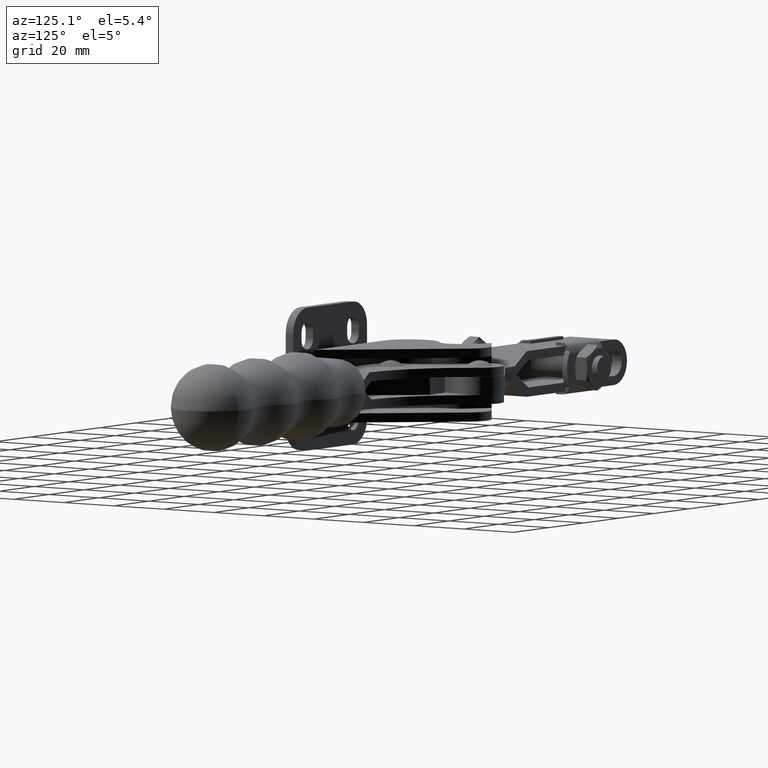
[diagram: clean part render]
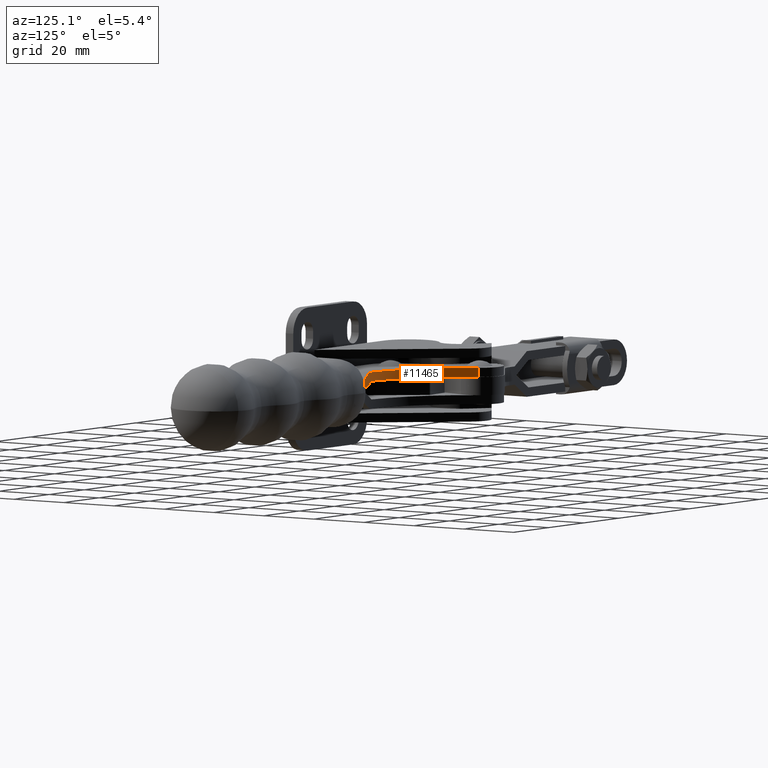
[diagram: same view with one face highlighted and labeled with its STEP entity id]
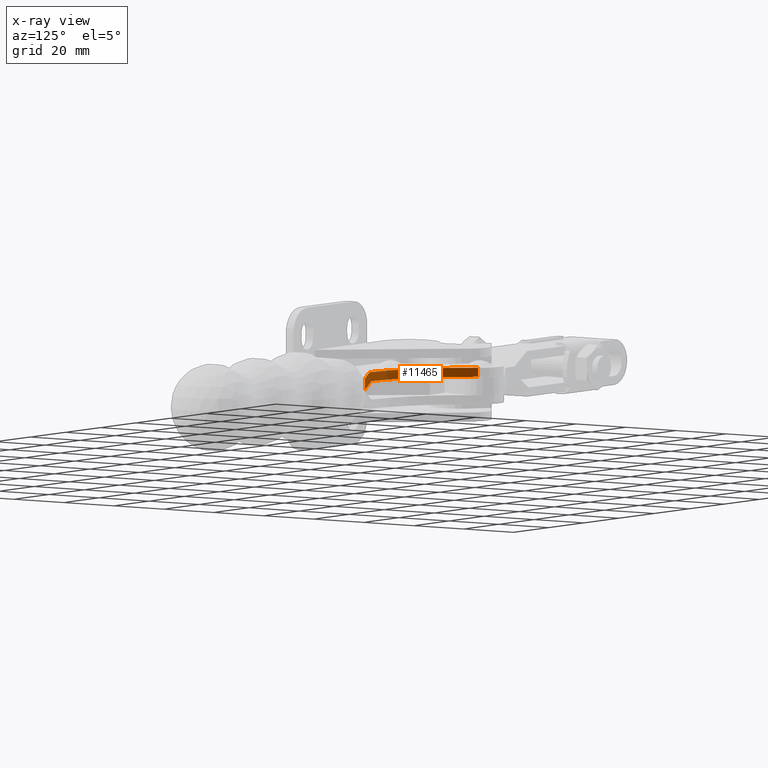
[diagram: x-ray of the same camera — body ghosted, the highlighted face saturated]
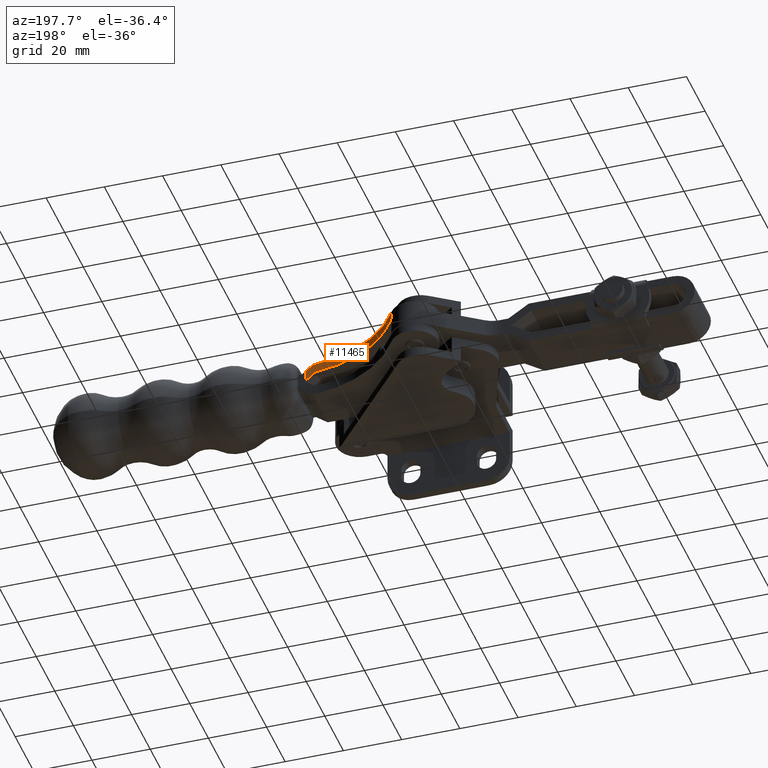
[diagram: same view with one face highlighted and labeled with its STEP entity id]
A machine part, auxiliary view. The second image highlights one B-rep face of the part: STEP entity #11465.
The next image is the same camera in x-ray: the body ghosted, the highlighted face saturated — about 0% of this face is hidden behind the body in this view.
A second angle (auxiliary view) of the same face is appended — the face is thin or edge-on in the first view.
In plain terms, the highlighted cylindrical surface (partial cylindrical patch) has radius 42 mm, axis along (-0, 0, 1).
Its self-contained STEP definition (entity closure, byte-faithful):
#87 = ORIENTED_EDGE ( 'NONE', *, *, #8102, .T. ) ;
#380 = CARTESIAN_POINT ( 'NONE',  ( 0.9703465250545939600, 84.82523727887910100, -1.561251128379126400E-014 ) ) ;
#640 = CARTESIAN_POINT ( 'NONE',  ( 1.087258008109923200, 42.82539999699034900, -2.706234756093502300 ) ) ;
#735 = CIRCLE ( 'NONE', #8889, 41.99999999999996400 ) ;
#871 = VERTEX_POINT ( 'NONE', #10898 ) ;
#1359 = DIRECTION ( 'NONE',  ( 0.9999961257592553400, 0.002783606739413593000, -4.900564053285028200E-017 ) ) ;
#1413 = CARTESIAN_POINT ( 'NONE',  ( -0.1173642718958565500, 42.82204678930220600, -1.802764545828276400 ) ) ;
#1460 = AXIS2_PLACEMENT_3D ( 'NONE', #3442, #10125, #4414 ) ;
#1632 = EDGE_CURVE ( 'NONE', #2728, #871, #6992, .T. ) ;
#1875 = EDGE_CURVE ( 'NONE', #2728, #5608, #10280, .T. ) ;
#2625 = VERTEX_POINT ( 'NONE', #640 ) ;
#2728 = VERTEX_POINT ( 'NONE', #11457 ) ;
#3325 = CARTESIAN_POINT ( 'NONE',  ( -1.321016751643564500, 42.87049046262857400, -0.9001298195489755300 ) ) ;
#3442 = CARTESIAN_POINT ( 'NONE',  ( 0.9703465250545939600, 84.82523727887910100, 2.999999999999988500 ) ) ;
#3607 = VECTOR ( 'NONE', #6369, 1000.000000000000000 ) ;
#3650 = ORIENTED_EDGE ( 'NONE', *, *, #10240, .F. ) ;
#3658 = ORIENTED_EDGE ( 'NONE', *, *, #6288, .T. ) ;
#3744 = CARTESIAN_POINT ( 'NONE',  ( -0.6526655517703916500, 42.84758880842436900, 2.348656534460550600 ) ) ;
#3787 = CARTESIAN_POINT ( 'NONE',  ( 1.087258008109909200, 42.82539999699034900, 1.043765243906067200 ) ) ;
#4414 = DIRECTION ( 'NONE',  ( 0.9999961257592553400, 0.002783606739412601600, 0.0000000000000000000 ) ) ;
#4499 = DIRECTION ( 'NONE',  ( -1.331013135398842300E-023, 9.481762602820905900E-024, 1.000000000000000000 ) ) ;
#4934 = EDGE_LOOP ( 'NONE', ( #87, #11246, #3658, #7043, #5493, #3650 ) ) ;
#5493 = ORIENTED_EDGE ( 'NONE', *, *, #1875, .T. ) ;
#5608 = VERTEX_POINT ( 'NONE', #7861 ) ;
#5677 = CARTESIAN_POINT ( 'NONE',  ( 0.2171238552780538300, 42.82297787631451100, 1.696368386871704300 ) ) ;
#6181 = LINE ( 'NONE', #8219, #3607 ) ;
#6199 = CARTESIAN_POINT ( 'NONE',  ( 1.087258008109923200, 42.82539999699034900, -37.00000000000001400 ) ) ;
#6288 = EDGE_CURVE ( 'NONE', #11617, #871, #6181, .T. ) ;
#6369 = DIRECTION ( 'NONE',  ( -1.331013135398842300E-023, 9.481762602820905900E-024, 1.000000000000000000 ) ) ;
#6499 = DIRECTION ( 'NONE',  ( 0.9999961257592553400, 0.002783606739412601600, 0.0000000000000000000 ) ) ;
#6617 = EDGE_CURVE ( 'NONE', #7572, #11617, #735, .T. ) ;
#6907 = FACE_OUTER_BOUND ( 'NONE', #4934, .T. ) ;
#6992 = CIRCLE ( 'NONE', #1460, 41.99999999999996400 ) ;
#7043 = ORIENTED_EDGE ( 'NONE', *, *, #1632, .F. ) ;
#7102 = DIRECTION ( 'NONE',  ( -4.900523157311254800E-017, -1.364213401785522700E-019, -1.000000000000000000 ) ) ;
#7561 = CARTESIAN_POINT ( 'NONE',  ( -34.84370344226167800, 62.88546004804626200, -1.951563910473908000E-013 ) ) ;
#7572 = VERTEX_POINT ( 'NONE', #7723 ) ;
#7723 = CARTESIAN_POINT ( 'NONE',  ( -2.521473276114391600, 42.97064142040542100, -1.517883041479706200E-014 ) ) ;
#7861 = CARTESIAN_POINT ( 'NONE',  ( 1.087258008109909200, 42.82539999699034900, 1.043765243906067200 ) ) ;
#8093 = DIRECTION ( 'NONE',  ( -1.331013135398842300E-023, 9.481762602820905900E-024, 1.000000000000000000 ) ) ;
#8102 = EDGE_CURVE ( 'NONE', #2625, #7572, #11681, .T. ) ;
#8104 = CARTESIAN_POINT ( 'NONE',  ( 1.087258008109923200, 42.82539999699034900, -2.706234756093502300 ) ) ;
#8219 = CARTESIAN_POINT ( 'NONE',  ( -34.84370344226167800, 62.88546004804626200, -37.00000000000001400 ) ) ;
#8353 = CARTESIAN_POINT ( 'NONE',  ( 0.9703465250545939600, 84.82523727887910100, -37.00000000000001400 ) ) ;
#8876 = AXIS2_PLACEMENT_3D ( 'NONE', #8353, #4499, #6499 ) ;
#8889 = AXIS2_PLACEMENT_3D ( 'NONE', #380, #7102, #1359 ) ;
#9133 = CYLINDRICAL_SURFACE ( 'NONE', #8876, 41.99999999999996400 ) ;
#9181 = VECTOR ( 'NONE', #8093, 1000.000000000000000 ) ;
#9513 = CARTESIAN_POINT ( 'NONE',  ( -1.521270561418819300, 42.89920903514497800, 2.999999999999988500 ) ) ;
#9995 = CARTESIAN_POINT ( 'NONE',  ( -2.521473276114391600, 42.97064142040542100, -1.517883041479706200E-014 ) ) ;
#10125 = DIRECTION ( 'NONE',  ( 1.331013135398842300E-023, -9.481762602820905900E-024, -1.000000000000000000 ) ) ;
#10240 = EDGE_CURVE ( 'NONE', #2625, #5608, #11710, .T. ) ;
#10280 =( BOUNDED_CURVE ( )  B_SPLINE_CURVE ( 3, ( #9513, #3744, #5677, #3787 ),
 .UNSPECIFIED., .F., .F. ) 
 B_SPLINE_CURVE_WITH_KNOTS ( ( 4, 4 ),
 ( 1.508653647653028100, 1.570796326794896800 ),
 .UNSPECIFIED. ) 
 CURVE ( )  GEOMETRIC_REPRESENTATION_ITEM ( )  RATIONAL_B_SPLINE_CURVE ( ( 1.000000000000000000, 0.9996782165085754700, 0.9996782165085754700, 1.000000000000000000 ) ) 
 REPRESENTATION_ITEM ( '' )  );
#10898 = CARTESIAN_POINT ( 'NONE',  ( -34.84370344226167800, 62.88546004804626200, 2.999999999999987600 ) ) ;
#11246 = ORIENTED_EDGE ( 'NONE', *, *, #6617, .T. ) ;
#11457 = CARTESIAN_POINT ( 'NONE',  ( -1.521270561418819300, 42.89920903514497800, 2.999999999999988500 ) ) ;
#11465 = ADVANCED_FACE ( 'NONE', ( #6907 ), #9133, .F. ) ;
#11617 = VERTEX_POINT ( 'NONE', #7561 ) ;
#11681 =( BOUNDED_CURVE ( )  B_SPLINE_CURVE ( 3, ( #8104, #1413, #3325, #9995 ),
 .UNSPECIFIED., .F., .F. ) 
 B_SPLINE_CURVE_WITH_KNOTS ( ( 4, 4 ),
 ( 4.712388980384689700, 4.798407232470784900 ),
 .UNSPECIFIED. ) 
 CURVE ( )  GEOMETRIC_REPRESENTATION_ITEM ( )  RATIONAL_B_SPLINE_CURVE ( ( 1.000000000000000000, 0.9993835000671512600, 0.9993835000671512600, 1.000000000000000000 ) ) 
 REPRESENTATION_ITEM ( '' )  );
#11710 = LINE ( 'NONE', #6199, #9181 ) ;